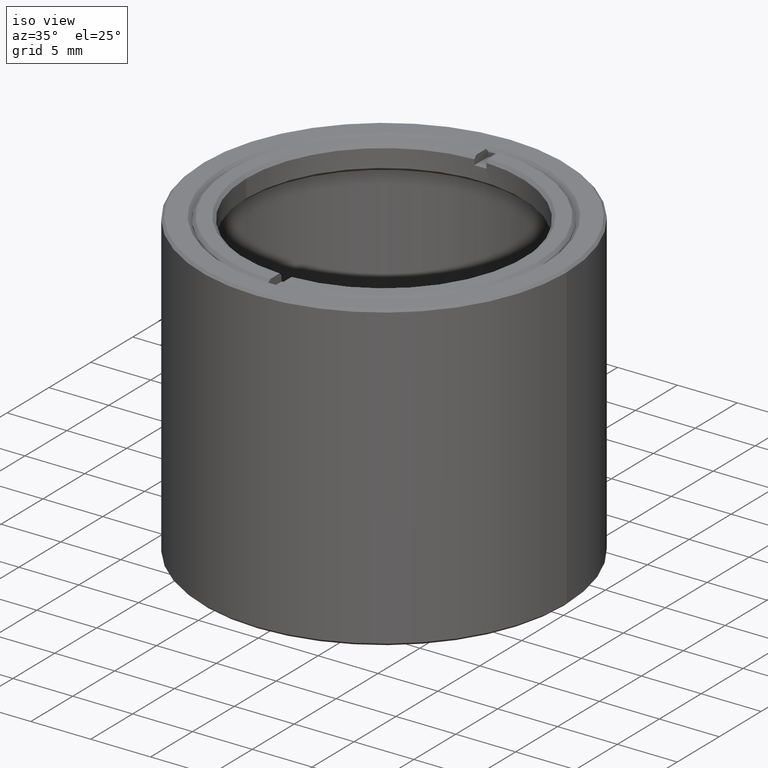
[diagram: clean part render]
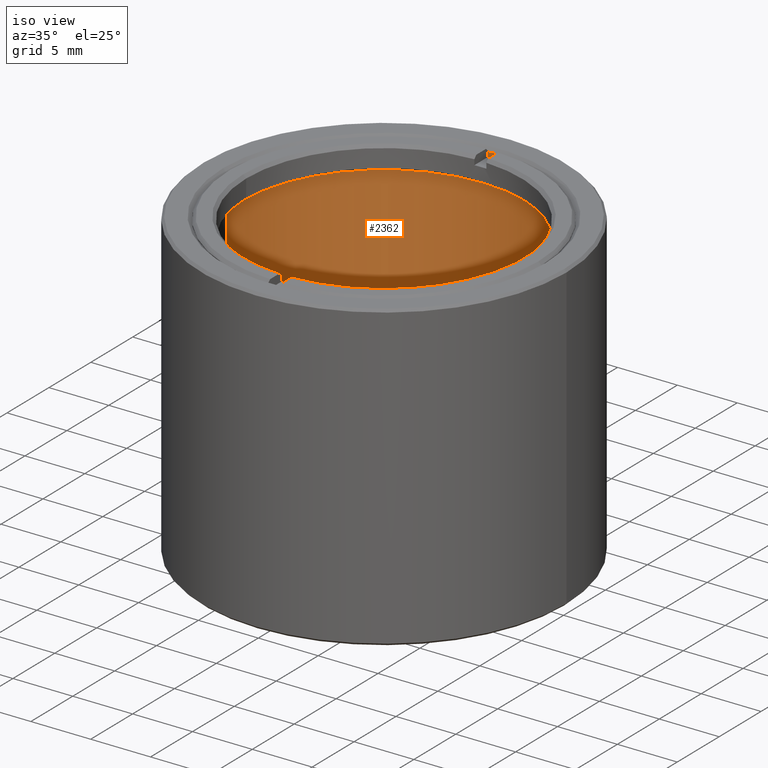
[diagram: same view with one face highlighted and labeled with its STEP entity id]
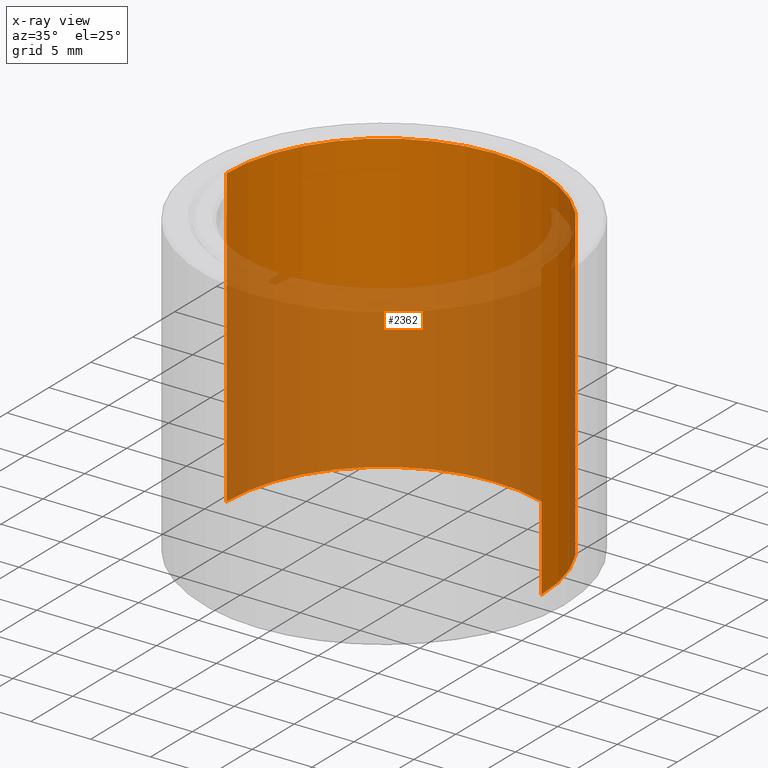
[diagram: x-ray of the same camera — body ghosted, the highlighted face saturated]
A machine part, iso view. The second image highlights one B-rep face of the part: STEP entity #2362.
The next image is the same camera in x-ray: the body ghosted, the highlighted face saturated — about 57% of this face is hidden behind the body in this view.
In plain terms, the highlighted cylindrical surface (partial cylindrical patch) has radius 13.15 mm, axis along (0, 0, -1).
Its self-contained STEP definition (entity closure, byte-faithful):
#56 = CARTESIAN_POINT ( 'NONE',  ( 13.14999999999999858, 1.610410540878768145E-15, -6.349999999999996092 ) ) ;
#61 = CARTESIAN_POINT ( 'NONE',  ( -13.14999999999999858, -3.220821081757539445E-15, -6.349999999999999645 ) ) ;
#64 = LINE ( 'NONE', #56, #2023 ) ;
#169 = DIRECTION ( 'NONE',  ( 1.000000000000000000, 1.224646799147352961E-16, 0.000000000000000000 ) ) ;
#219 = CYLINDRICAL_SURFACE ( 'NONE', #1459, 13.14999999999999858 ) ;
#278 = LINE ( 'NONE', #61, #1728 ) ;
#324 = ORIENTED_EDGE ( 'NONE', *, *, #1857, .F. ) ;
#336 = DIRECTION ( 'NONE',  ( 1.000000000000000000, 1.224646799147352961E-16, 1.319181350552705260E-16 ) ) ;
#372 = CARTESIAN_POINT ( 'NONE',  ( -13.14999999999999503, -3.220821081757539445E-15, -31.45000000000000639 ) ) ;
#394 = VERTEX_POINT ( 'NONE', #1787 ) ;
#620 = CIRCLE ( 'NONE', #1125, 13.14999999999999858 ) ;
#759 = DIRECTION ( 'NONE',  ( 1.224646799147353207E-16, 0.000000000000000000, -1.000000000000000000 ) ) ;
#861 = ORIENTED_EDGE ( 'NONE', *, *, #2494, .T. ) ;
#862 = CARTESIAN_POINT ( 'NONE',  ( 13.15000000000000213, 1.610410540878768145E-15, -31.45000000000000639 ) ) ;
#1030 = DIRECTION ( 'NONE',  ( 1.224646799147353207E-16, 0.000000000000000000, -1.000000000000000000 ) ) ;
#1116 = CARTESIAN_POINT ( 'NONE',  ( 8.143901214329867236E-16, -1.216263278479431880E-30, -6.650000000000013678 ) ) ;
#1125 = AXIS2_PLACEMENT_3D ( 'NONE', #1331, #759, #169 ) ;
#1169 = VERTEX_POINT ( 'NONE', #372 ) ;
#1184 = EDGE_LOOP ( 'NONE', ( #1224, #1214, #861, #324 ) ) ;
#1214 = ORIENTED_EDGE ( 'NONE', *, *, #1830, .T. ) ;
#1224 = ORIENTED_EDGE ( 'NONE', *, *, #1789, .T. ) ;
#1322 = DIRECTION ( 'NONE',  ( 1.224646799147353207E-16, 0.000000000000000000, -1.000000000000000000 ) ) ;
#1331 = CARTESIAN_POINT ( 'NONE',  ( 3.851514183318421672E-15, -1.216263278479431880E-30, -31.45000000000000639 ) ) ;
#1364 = AXIS2_PLACEMENT_3D ( 'NONE', #1116, #2098, #336 ) ;
#1459 = AXIS2_PLACEMENT_3D ( 'NONE', #2466, #1322, #2473 ) ;
#1728 = VECTOR ( 'NONE', #2204, 1000.000000000000000 ) ;
#1787 = CARTESIAN_POINT ( 'NONE',  ( -13.14999999999999858, -1.628780242865981533E-15, -6.650000000000015454 ) ) ;
#1789 = EDGE_CURVE ( 'NONE', #2406, #394, #2491, .T. ) ;
#1830 = EDGE_CURVE ( 'NONE', #394, #1169, #278, .T. ) ;
#1834 = FACE_OUTER_BOUND ( 'NONE', #1184, .T. ) ;
#1857 = EDGE_CURVE ( 'NONE', #2406, #1876, #64, .T. ) ;
#1876 = VERTEX_POINT ( 'NONE', #862 ) ;
#2023 = VECTOR ( 'NONE', #1030, 1000.000000000000000 ) ;
#2098 = DIRECTION ( 'NONE',  ( -1.224646799147353207E-16, -0.000000000000000000, 1.000000000000000000 ) ) ;
#2204 = DIRECTION ( 'NONE',  ( 1.224646799147353207E-16, 0.000000000000000000, -1.000000000000000000 ) ) ;
#2362 = ADVANCED_FACE ( 'NONE', ( #1834 ), #219, .F. ) ;
#2406 = VERTEX_POINT ( 'NONE', #2430 ) ;
#2430 = CARTESIAN_POINT ( 'NONE',  ( 13.14999999999999858, -1.216263278479431880E-30, -6.650000000000011902 ) ) ;
#2466 = CARTESIAN_POINT ( 'NONE',  ( 7.776507174585642859E-16, -1.216263278479431880E-30, -6.349999999999997868 ) ) ;
#2473 = DIRECTION ( 'NONE',  ( 1.000000000000000000, 1.224646799147352961E-16, 1.319181350552705260E-16 ) ) ;
#2491 = CIRCLE ( 'NONE', #1364, 13.14999999999999858 ) ;
#2494 = EDGE_CURVE ( 'NONE', #1169, #1876, #620, .T. ) ;